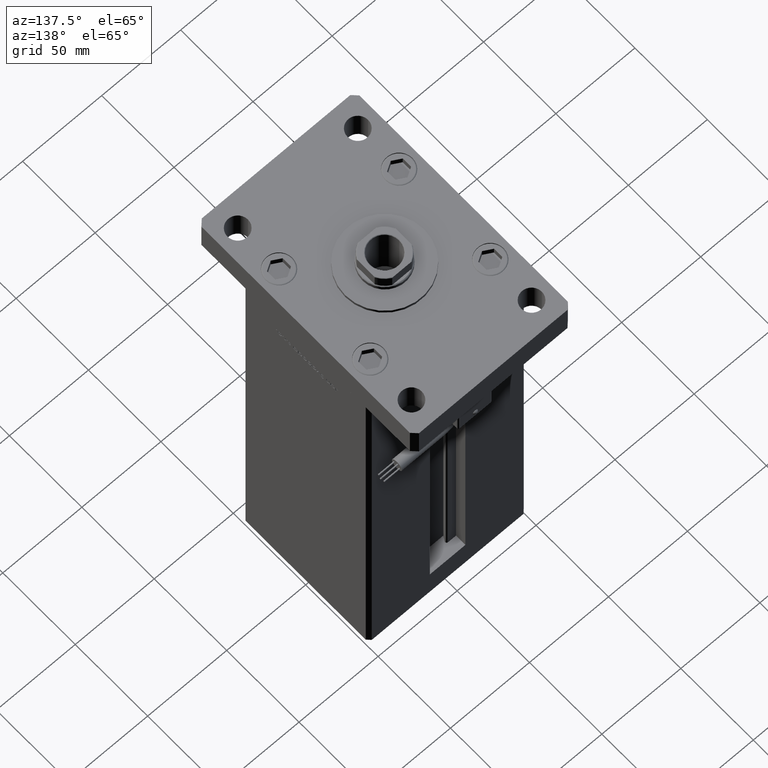
[diagram: clean part render]
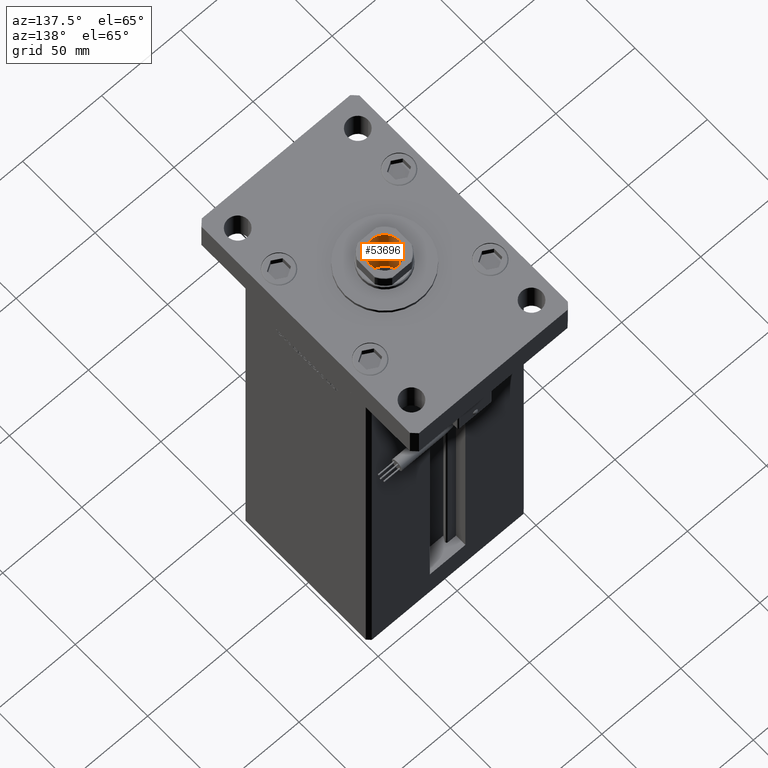
[diagram: same view with one face highlighted and labeled with its STEP entity id]
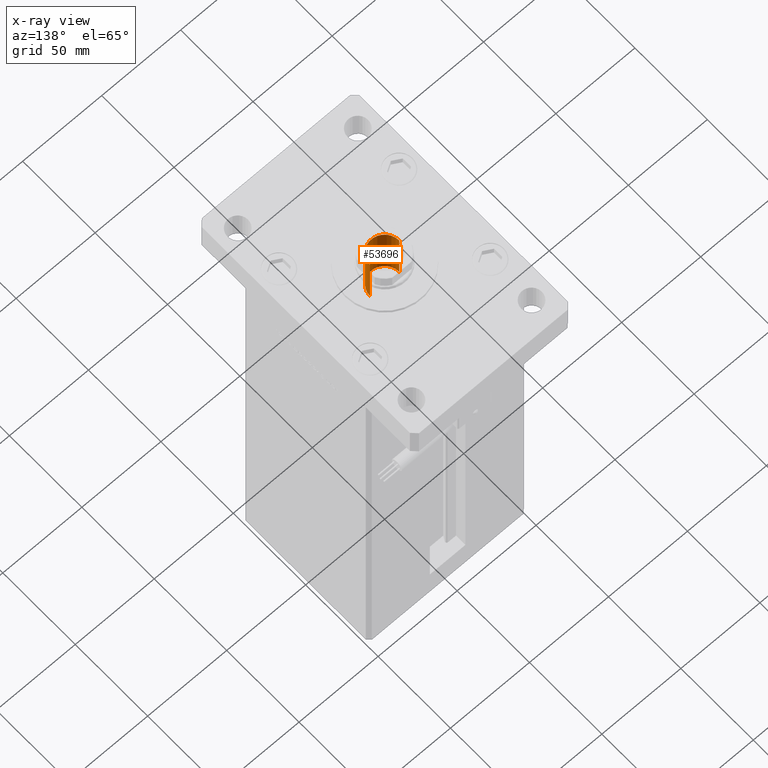
[diagram: x-ray of the same camera — body ghosted, the highlighted face saturated]
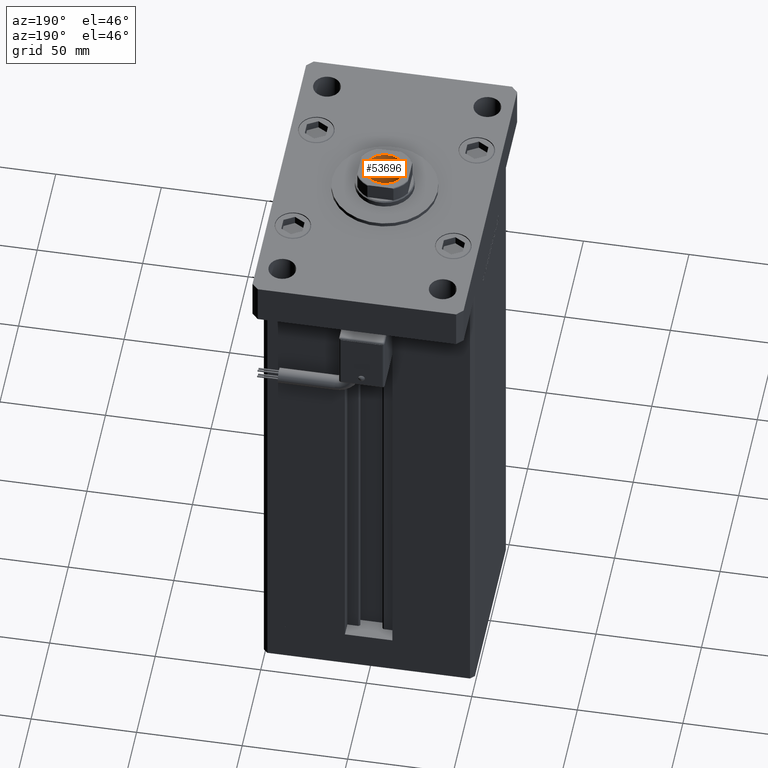
[diagram: same view with one face highlighted and labeled with its STEP entity id]
A machine part, auxiliary view. The second image highlights one B-rep face of the part: STEP entity #53696.
The next image is the same camera in x-ray: the body ghosted, the highlighted face saturated — about 0% of this face is hidden behind the body in this view.
A second angle (auxiliary view) of the same face is appended — the face is thin or edge-on in the first view.
In plain terms, the highlighted cylindrical surface (edge-blend (fillet) strip) has radius 9.25 mm, axis along (0, 0, 1).
Its self-contained STEP definition (entity closure, byte-faithful):
#918 = EDGE_CURVE ( 'NONE', #29340, #47706, #28343, .T. ) ;
#6419 = VERTEX_POINT ( 'NONE', #37454 ) ;
#7228 = AXIS2_PLACEMENT_3D ( 'NONE', #37487, #42380, #24554 ) ;
#8074 = CARTESIAN_POINT ( 'NONE',  ( 9.249999999999996447, 0.000000000000000000, 255.2499999999999716 ) ) ;
#8568 = CARTESIAN_POINT ( 'NONE',  ( 0.000000000000000000, 0.000000000000000000, 255.2499999999999716 ) ) ;
#12262 = DIRECTION ( 'NONE',  ( 1.000000000000000000, 0.000000000000000000, 0.000000000000000000 ) ) ;
#13167 = VECTOR ( 'NONE', #34248, 1000.000000000000000 ) ;
#16002 = ORIENTED_EDGE ( 'NONE', *, *, #35569, .T. ) ;
#19775 = ORIENTED_EDGE ( 'NONE', *, *, #45711, .F. ) ;
#21242 = FACE_OUTER_BOUND ( 'NONE', #50537, .T. ) ;
#24554 = DIRECTION ( 'NONE',  ( 1.000000000000000000, 0.000000000000000000, 0.000000000000000000 ) ) ;
#24696 = DIRECTION ( 'NONE',  ( -0.000000000000000000, -0.000000000000000000, 1.000000000000000000 ) ) ;
#25275 = CYLINDRICAL_SURFACE ( 'NONE', #48227, 9.249999999999996447 ) ;
#25430 = CARTESIAN_POINT ( 'NONE',  ( -9.249999999999994671, 1.132798289211300909E-15, 220.2499999999999716 ) ) ;
#25847 = CARTESIAN_POINT ( 'NONE',  ( 9.249999999999994671, 0.000000000000000000, 220.2499999999999716 ) ) ;
#26112 = DIRECTION ( 'NONE',  ( -0.000000000000000000, -0.000000000000000000, 1.000000000000000000 ) ) ;
#28343 = CIRCLE ( 'NONE', #7228, 9.249999999999994671 ) ;
#29340 = VERTEX_POINT ( 'NONE', #25430 ) ;
#29544 = VECTOR ( 'NONE', #24696, 1000.000000000000000 ) ;
#30136 = LINE ( 'NONE', #51446, #29544 ) ;
#34248 = DIRECTION ( 'NONE',  ( -0.000000000000000000, -0.000000000000000000, 1.000000000000000000 ) ) ;
#35569 = EDGE_CURVE ( 'NONE', #29340, #6419, #30136, .T. ) ;
#37454 = CARTESIAN_POINT ( 'NONE',  ( -9.249999999999996447, 1.132798289211301304E-15, 254.9500000000000171 ) ) ;
#37487 = CARTESIAN_POINT ( 'NONE',  ( 0.000000000000000000, 0.000000000000000000, 220.2499999999999716 ) ) ;
#38104 = VERTEX_POINT ( 'NONE', #48784 ) ;
#39595 = ORIENTED_EDGE ( 'NONE', *, *, #918, .F. ) ;
#42159 = CARTESIAN_POINT ( 'NONE',  ( 0.000000000000000000, 0.000000000000000000, 254.9500000000000171 ) ) ;
#42380 = DIRECTION ( 'NONE',  ( -0.000000000000000000, -0.000000000000000000, 1.000000000000000000 ) ) ;
#43656 = DIRECTION ( 'NONE',  ( 1.000000000000000000, 0.000000000000000000, 0.000000000000000000 ) ) ;
#45711 = EDGE_CURVE ( 'NONE', #47706, #38104, #48611, .T. ) ;
#47040 = ORIENTED_EDGE ( 'NONE', *, *, #51110, .T. ) ;
#47706 = VERTEX_POINT ( 'NONE', #25847 ) ;
#48227 = AXIS2_PLACEMENT_3D ( 'NONE', #8568, #26112, #43656 ) ;
#48611 = LINE ( 'NONE', #8074, #13167 ) ;
#48784 = CARTESIAN_POINT ( 'NONE',  ( 9.249999999999996447, 0.000000000000000000, 254.9500000000000171 ) ) ;
#49087 = AXIS2_PLACEMENT_3D ( 'NONE', #42159, #55405, #12262 ) ;
#50537 = EDGE_LOOP ( 'NONE', ( #39595, #16002, #47040, #19775 ) ) ;
#51110 = EDGE_CURVE ( 'NONE', #6419, #38104, #51978, .T. ) ;
#51446 = CARTESIAN_POINT ( 'NONE',  ( -9.249999999999996447, 1.132798289211301304E-15, 255.2499999999999716 ) ) ;
#51978 = CIRCLE ( 'NONE', #49087, 9.249999999999996447 ) ;
#53696 = ADVANCED_FACE ( 'NONE', ( #21242 ), #25275, .F. ) ;
#55405 = DIRECTION ( 'NONE',  ( 0.000000000000000000, 0.000000000000000000, 1.000000000000000000 ) ) ;